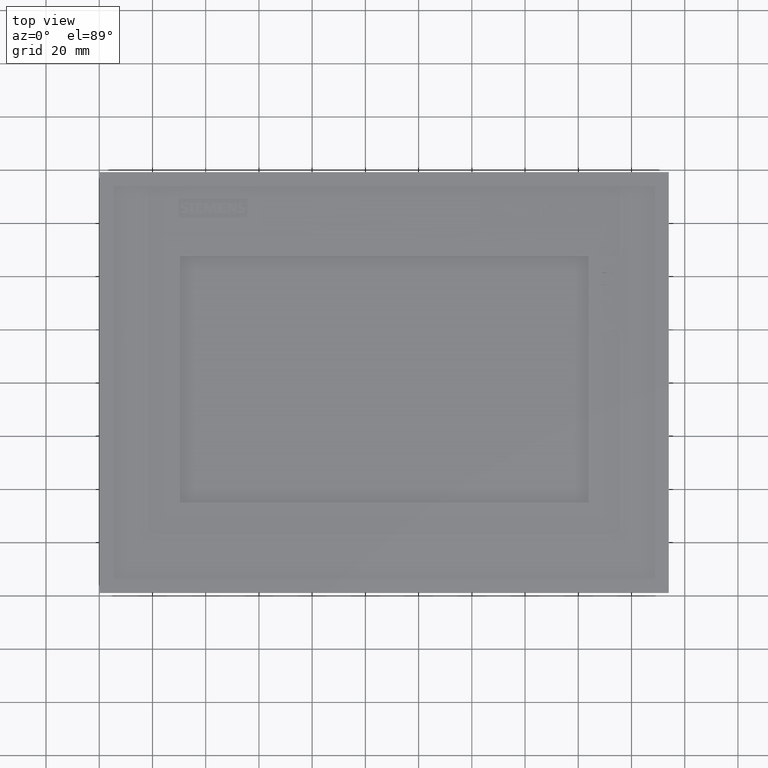
[diagram: clean part render]
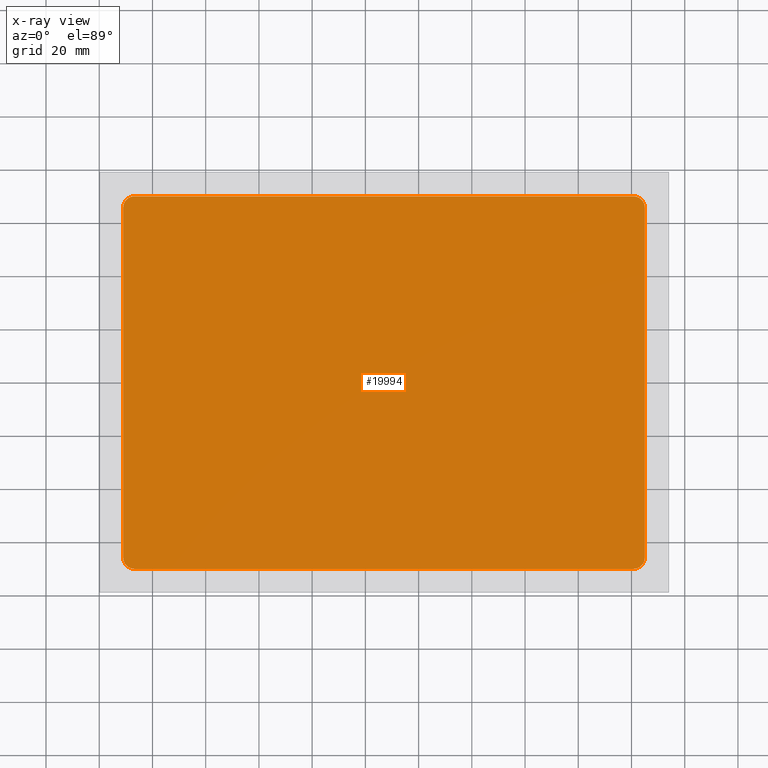
[diagram: x-ray — body ghosted, one internal face saturated and labeled with its STEP entity id]
A machine part, top view, then the same camera in x-ray: the body is ghosted and one INTERNAL B-rep face — a face not visible from any outside direction — is saturated and labeled: STEP entity #19994.
In plain terms, the highlighted planar face has unit normal (0, 0, 1).
Its self-contained STEP definition (entity closure, byte-faithful):
#1858=LINE('',#66465,#7243);
#1862=LINE('',#66472,#7247);
#1866=LINE('',#66480,#7251);
#1869=LINE('',#66492,#7254);
#7243=VECTOR('',#54576,1.);
#7247=VECTOR('',#54582,1.);
#7251=VECTOR('',#54588,1.);
#7254=VECTOR('',#54605,1.);
#15163=PLANE('',#50680);
#17477=FACE_OUTER_BOUND('',#23530,.T.);
#19994=ADVANCED_FACE('',(#17477),#15163,.T.);
#23530=EDGE_LOOP('',(#27651,#27652,#27653,#27654,#27655,#27656,#27657,#27658));
#27651=ORIENTED_EDGE('',*,*,#44138,.T.);
#27652=ORIENTED_EDGE('',*,*,#44139,.T.);
#27653=ORIENTED_EDGE('',*,*,#44130,.T.);
#27654=ORIENTED_EDGE('',*,*,#44142,.T.);
#27655=ORIENTED_EDGE('',*,*,#44144,.T.);
#27656=ORIENTED_EDGE('',*,*,#44145,.T.);
#27657=ORIENTED_EDGE('',*,*,#44134,.T.);
#27658=ORIENTED_EDGE('',*,*,#44140,.T.);
#39603=VERTEX_POINT('',#66464);
#39604=VERTEX_POINT('',#66466);
#39605=VERTEX_POINT('',#66471);
#39606=VERTEX_POINT('',#66473);
#39607=VERTEX_POINT('',#66477);
#39608=VERTEX_POINT('',#66479);
#39609=VERTEX_POINT('',#66487);
#39610=VERTEX_POINT('',#66491);
#44130=EDGE_CURVE('',#39604,#39603,#1858,.T.);
#44134=EDGE_CURVE('',#39606,#39605,#1862,.T.);
#44138=EDGE_CURVE('',#39607,#39608,#1866,.T.);
#44139=EDGE_CURVE('',#39608,#39604,#49985,.T.);
#44140=EDGE_CURVE('',#39605,#39607,#49986,.T.);
#44142=EDGE_CURVE('',#39603,#39609,#49987,.T.);
#44144=EDGE_CURVE('',#39609,#39610,#1869,.T.);
#44145=EDGE_CURVE('',#39610,#39606,#49988,.T.);
#49985=CIRCLE('',#50671,4.26459522086);
#49986=CIRCLE('',#50673,4.26459522086);
#49987=CIRCLE('',#50675,4.26459522086);
#49988=CIRCLE('',#50678,4.26459522086);
#50671=AXIS2_PLACEMENT_3D('',#66482,#54591,#54592);
#50673=AXIS2_PLACEMENT_3D('',#66484,#54595,#54596);
#50675=AXIS2_PLACEMENT_3D('',#66488,#54600,#54601);
#50678=AXIS2_PLACEMENT_3D('',#66494,#54608,#54609);
#50680=AXIS2_PLACEMENT_3D('',#66496,#54612,#54613);
#54576=DIRECTION('',(1.,0.,0.));
#54582=DIRECTION('',(-1.,0.,0.));
#54588=DIRECTION('',(0.,-1.,0.));
#54591=DIRECTION('',(0.,0.,1.));
#54592=DIRECTION('',(0.,-1.,0.));
#54595=DIRECTION('',(0.,0.,1.));
#54596=DIRECTION('',(-1.,0.,0.));
#54600=DIRECTION('',(0.,0.,1.));
#54601=DIRECTION('',(1.,0.,0.));
#54605=DIRECTION('',(0.,1.,0.));
#54608=DIRECTION('',(0.,0.,1.));
#54609=DIRECTION('',(0.,1.,0.));
#54612=DIRECTION('',(0.,0.,1.));
#54613=DIRECTION('',(1.,0.,0.));
#66464=CARTESIAN_POINT('',(93.75,-70.01459522086,-6.));
#66465=CARTESIAN_POINT('',(-93.75,-70.01459522086,-6.));
#66466=CARTESIAN_POINT('',(-93.75,-70.01459522086,-6.));
#66471=CARTESIAN_POINT('',(-93.75,70.01459522086,-6.));
#66472=CARTESIAN_POINT('',(93.75,70.01459522086,-6.));
#66473=CARTESIAN_POINT('',(93.75,70.01459522086,-6.));
#66477=CARTESIAN_POINT('',(-98.01459522086,65.75,-6.));
#66479=CARTESIAN_POINT('',(-98.01459522086,-65.75,-6.));
#66480=CARTESIAN_POINT('',(-98.01459522086,65.75,-6.));
#66482=CARTESIAN_POINT('',(-93.75,-65.75,-6.));
#66484=CARTESIAN_POINT('',(-93.75,65.75,-6.));
#66487=CARTESIAN_POINT('',(98.01459522086,-65.75,-6.));
#66488=CARTESIAN_POINT('',(93.75,-65.75,-6.));
#66491=CARTESIAN_POINT('',(98.01459522086,65.75,-6.));
#66492=CARTESIAN_POINT('',(98.01459522086,-65.75,-6.));
#66494=CARTESIAN_POINT('',(93.75,65.75,-6.));
#66496=CARTESIAN_POINT('',(-93.75,-65.75,-6.));